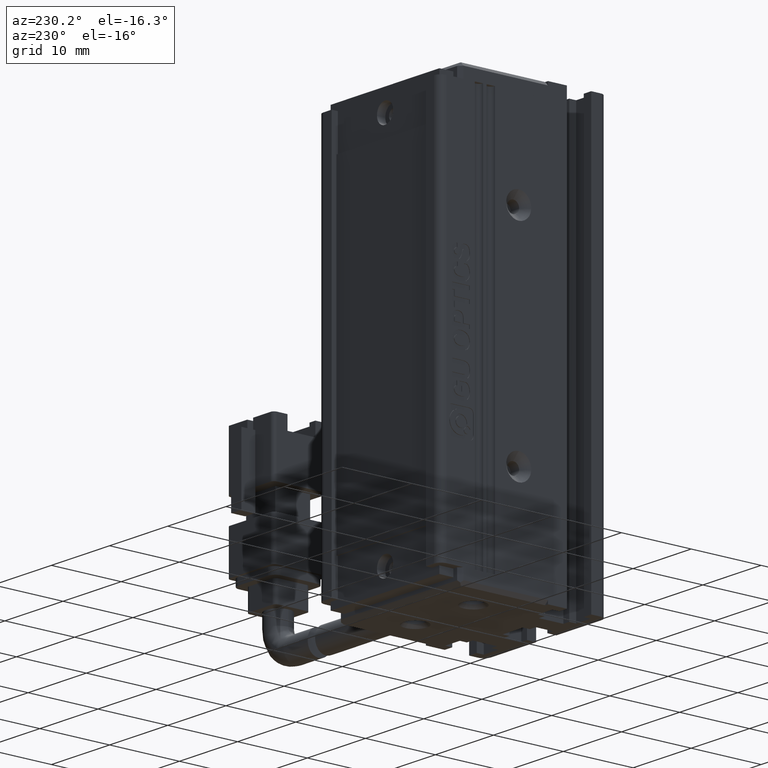
[diagram: clean part render]
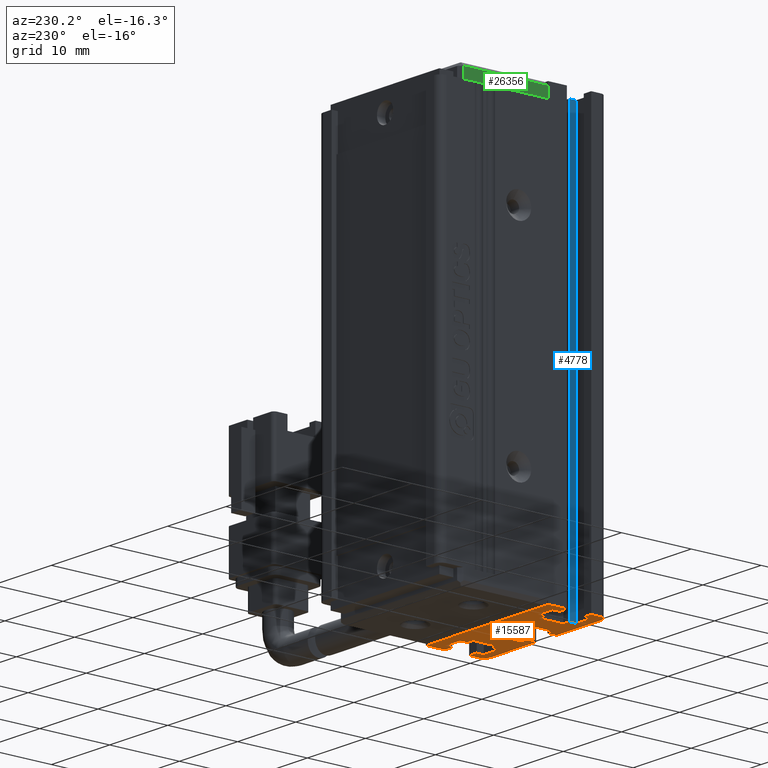
[diagram: same view with three faces highlighted in distinct colors, each labeled with its STEP entity id]
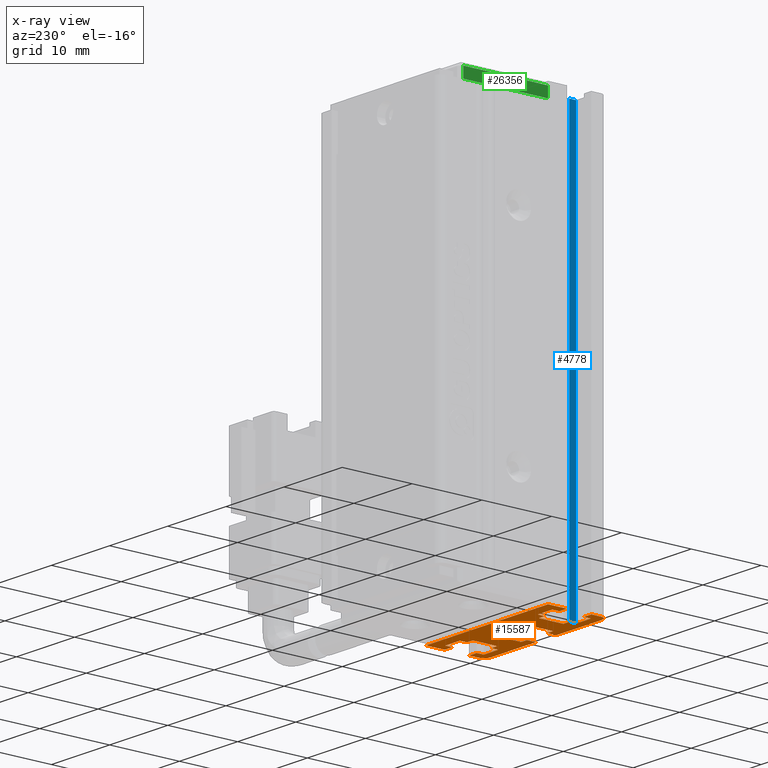
[diagram: x-ray of the same camera — body ghosted, the three highlighted faces saturated]
A machine part, auxiliary view with three faces highlighted in distinct colors.
The next image is the same camera in x-ray (body ghosted, the three faces saturated) — at least one of them is partly hidden behind the body in this view.
Their STEP definitions:

[orange] entity #15587 — the highlighted planar face has unit normal (-0, 0, 1).
#7 = VERTEX_POINT ( 'NONE', #13514 ) ;
#19 = DIRECTION ( 'NONE',  ( 1.000000000000000000, 0.0000000000000000000, 0.0000000000000000000 ) ) ;
#21 = CIRCLE ( 'NONE', #11964, 1.000000000000000900 ) ;
#32 = LINE ( 'NONE', #17951, #11987 ) ;
#67 = CARTESIAN_POINT ( 'NONE',  ( 21.22537974683542200, 12.88379746835444100, -145.0000000000000300 ) ) ;
#90 = ORIENTED_EDGE ( 'NONE', *, *, #24316, .F. ) ;
#91 = DIRECTION ( 'NONE',  ( 1.000000000000000000, 2.168404344971006600E-016, 0.0000000000000000000 ) ) ;
#93 = AXIS2_PLACEMENT_3D ( 'NONE', #24642, #11392, #9210 ) ;
#212 = EDGE_CURVE ( 'NONE', #8541, #2190, #1710, .T. ) ;
#227 = CARTESIAN_POINT ( 'NONE',  ( 21.22537974683542600, 13.88379746835443700, -145.0000000000000300 ) ) ;
#285 = LINE ( 'NONE', #4698, #18794 ) ;
#288 = VERTEX_POINT ( 'NONE', #4007 ) ;
#421 = CARTESIAN_POINT ( 'NONE',  ( 33.17537974683542500, 8.383797468354437400, -145.0000000000000300 ) ) ;
#545 = CARTESIAN_POINT ( 'NONE',  ( 23.72537974683543300, 9.383797468354437400, -145.0000000000000300 ) ) ;
#637 = VECTOR ( 'NONE', #12863, 1000.000000000000000 ) ;
#652 = EDGE_CURVE ( 'NONE', #2190, #25988, #3022, .T. ) ;
#654 = CARTESIAN_POINT ( 'NONE',  ( 27.67537974683542500, 8.383797468354437400, -145.0000000000000300 ) ) ;
#714 = ORIENTED_EDGE ( 'NONE', *, *, #5161, .F. ) ;
#741 = ORIENTED_EDGE ( 'NONE', *, *, #19962, .F. ) ;
#764 = CARTESIAN_POINT ( 'NONE',  ( 28.67537974683542900, 7.083797468354437600, -145.0000000000000300 ) ) ;
#1118 = CARTESIAN_POINT ( 'NONE',  ( 39.62537974683541400, 7.083797468354437600, -145.0000000000000300 ) ) ;
#1336 = LINE ( 'NONE', #19323, #18482 ) ;
#1453 = CARTESIAN_POINT ( 'NONE',  ( 27.67537974683542500, 10.88379746835443600, -145.0000000000000300 ) ) ;
#1494 = ORIENTED_EDGE ( 'NONE', *, *, #21286, .F. ) ;
#1588 = VECTOR ( 'NONE', #15485, 1000.000000000000000 ) ;
#1710 = LINE ( 'NONE', #13825, #12634 ) ;
#1920 = VECTOR ( 'NONE', #25831, 1000.000000000000000 ) ;
#1946 = VERTEX_POINT ( 'NONE', #7652 ) ;
#2024 = ORIENTED_EDGE ( 'NONE', *, *, #18951, .F. ) ;
#2099 = ORIENTED_EDGE ( 'NONE', *, *, #18654, .F. ) ;
#2190 = VERTEX_POINT ( 'NONE', #8730 ) ;
#2243 = VECTOR ( 'NONE', #26325, 1000.000000000000000 ) ;
#2250 = DIRECTION ( 'NONE',  ( -1.000000000000000000, 0.0000000000000000000, 0.0000000000000000000 ) ) ;
#2277 = CARTESIAN_POINT ( 'NONE',  ( 40.92537974683542500, 10.88379746835444100, -145.0000000000000300 ) ) ;
#2426 = ORIENTED_EDGE ( 'NONE', *, *, #28383, .F. ) ;
#2605 = CARTESIAN_POINT ( 'NONE',  ( 37.12537974683541400, 9.383797468354437400, -145.0000000000000300 ) ) ;
#2712 = CARTESIAN_POINT ( 'NONE',  ( 39.92537974683542500, 7.083797468354437600, -145.0000000000000300 ) ) ;
#2738 = EDGE_CURVE ( 'NONE', #14581, #25827, #285, .T. ) ;
#2847 = CARTESIAN_POINT ( 'NONE',  ( 24.72537974683543300, 12.88379746835443700, -145.0000000000000300 ) ) ;
#2996 = VECTOR ( 'NONE', #21630, 1000.000000000000000 ) ;
#3009 = DIRECTION ( 'NONE',  ( 0.0000000000000000000, 1.000000000000000000, 0.0000000000000000000 ) ) ;
#3022 = LINE ( 'NONE', #15186, #24360 ) ;
#3128 = EDGE_CURVE ( 'NONE', #8541, #16170, #11475, .T. ) ;
#3245 = DIRECTION ( 'NONE',  ( -3.469446951953625600E-015, 1.000000000000000000, 0.0000000000000000000 ) ) ;
#3273 = DIRECTION ( 'NONE',  ( 1.000000000000000000, 0.0000000000000000000, 0.0000000000000000000 ) ) ;
#3414 = ORIENTED_EDGE ( 'NONE', *, *, #25224, .F. ) ;
#3494 = LINE ( 'NONE', #17140, #11725 ) ;
#3541 = VERTEX_POINT ( 'NONE', #67 ) ;
#3582 = LINE ( 'NONE', #11774, #12205 ) ;
#3646 = LINE ( 'NONE', #26115, #637 ) ;
#3674 = LINE ( 'NONE', #17523, #14666 ) ;
#3731 = VERTEX_POINT ( 'NONE', #7573 ) ;
#3743 = ORIENTED_EDGE ( 'NONE', *, *, #9774, .F. ) ;
#3803 = EDGE_CURVE ( 'NONE', #6259, #21144, #25906, .T. ) ;
#3924 = DIRECTION ( 'NONE',  ( -0.0000000000000000000, -1.000000000000000000, 0.0000000000000000000 ) ) ;
#3943 = VECTOR ( 'NONE', #27352, 1000.000000000000000 ) ;
#3983 = CARTESIAN_POINT ( 'NONE',  ( 40.92537974683542500, 12.88379746835443600, -145.0000000000000300 ) ) ;
#4007 = CARTESIAN_POINT ( 'NONE',  ( 32.17537974683542500, 7.083797468354436700, -145.0000000000000300 ) ) ;
#4032 = CARTESIAN_POINT ( 'NONE',  ( 39.92537974683542500, 8.083797468354438500, -145.0000000000000300 ) ) ;
#4077 = VECTOR ( 'NONE', #26450, 1000.000000000000000 ) ;
#4268 = CARTESIAN_POINT ( 'NONE',  ( 32.17537974683542500, 11.88379746835443700, -145.0000000000000300 ) ) ;
#4279 = VERTEX_POINT ( 'NONE', #16563 ) ;
#4329 = DIRECTION ( 'NONE',  ( -1.000000000000000000, -0.0000000000000000000, -0.0000000000000000000 ) ) ;
#4346 = ORIENTED_EDGE ( 'NONE', *, *, #212, .T. ) ;
#4444 = CARTESIAN_POINT ( 'NONE',  ( 40.92537974683542500, 8.083797468354440200, -145.0000000000000300 ) ) ;
#4556 = EDGE_CURVE ( 'NONE', #11454, #3731, #16503, .T. ) ;
#4698 = CARTESIAN_POINT ( 'NONE',  ( 28.67537974683542900, 7.083797468354454500, -145.0000000000000300 ) ) ;
#4736 = VERTEX_POINT ( 'NONE', #227 ) ;
#4805 = LINE ( 'NONE', #16839, #5119 ) ;
#4896 = DIRECTION ( 'NONE',  ( 0.0000000000000000000, 1.000000000000000000, -0.0000000000000000000 ) ) ;
#5117 = CARTESIAN_POINT ( 'NONE',  ( 39.62537974683541400, 12.88379746835443400, -145.0000000000000300 ) ) ;
#5119 = VECTOR ( 'NONE', #19526, 1000.000000000000000 ) ;
#5127 = ORIENTED_EDGE ( 'NONE', *, *, #20761, .T. ) ;
#5161 = EDGE_CURVE ( 'NONE', #1946, #6050, #4805, .T. ) ;
#5183 = DIRECTION ( 'NONE',  ( -1.000000000000000000, -0.0000000000000000000, 0.0000000000000000000 ) ) ;
#5598 = EDGE_CURVE ( 'NONE', #6259, #4279, #13339, .T. ) ;
#5651 = CARTESIAN_POINT ( 'NONE',  ( 40.92537974683542500, 11.88379746835443700, -145.0000000000000300 ) ) ;
#5717 = CARTESIAN_POINT ( 'NONE',  ( 28.67537974683542900, 8.383797468354437400, -145.0000000000000300 ) ) ;
#5760 = CARTESIAN_POINT ( 'NONE',  ( 40.92537974683542500, 7.083797468354435800, -145.0000000000000300 ) ) ;
#5812 = VERTEX_POINT ( 'NONE', #22035 ) ;
#6050 = VERTEX_POINT ( 'NONE', #21892 ) ;
#6259 = VERTEX_POINT ( 'NONE', #2847 ) ;
#6543 = EDGE_CURVE ( 'NONE', #4736, #3541, #18060, .T. ) ;
#6627 = AXIS2_PLACEMENT_3D ( 'NONE', #19327, #12947, #28336 ) ;
#6657 = VECTOR ( 'NONE', #27019, 1000.000000000000000 ) ;
#6665 = LINE ( 'NONE', #11594, #7355 ) ;
#6812 = ORIENTED_EDGE ( 'NONE', *, *, #25306, .F. ) ;
#6845 = ORIENTED_EDGE ( 'NONE', *, *, #9352, .T. ) ;
#6999 = PLANE ( 'NONE',  #93 ) ;
#7119 = ORIENTED_EDGE ( 'NONE', *, *, #16780, .T. ) ;
#7203 = LINE ( 'NONE', #3983, #18584 ) ;
#7267 = LINE ( 'NONE', #2277, #13090 ) ;
#7355 = VECTOR ( 'NONE', #4896, 1000.000000000000000 ) ;
#7500 = VERTEX_POINT ( 'NONE', #25148 ) ;
#7526 = VERTEX_POINT ( 'NONE', #16530 ) ;
#7573 = CARTESIAN_POINT ( 'NONE',  ( 19.92537974683542500, 8.083797468354434900, -145.0000000000000300 ) ) ;
#7652 = CARTESIAN_POINT ( 'NONE',  ( 37.12537974683541400, 12.88379746835443600, -145.0000000000000300 ) ) ;
#7684 = CARTESIAN_POINT ( 'NONE',  ( 33.17537974683542500, 7.083797468354437600, -145.0000000000000300 ) ) ;
#7827 = VECTOR ( 'NONE', #12186, 1000.000000000000000 ) ;
#8209 = EDGE_CURVE ( 'NONE', #11261, #25988, #7203, .T. ) ;
#8258 = CARTESIAN_POINT ( 'NONE',  ( 19.92537974683542500, 7.083797468354437600, -145.0000000000000300 ) ) ;
#8263 = EDGE_CURVE ( 'NONE', #288, #13849, #14764, .T. ) ;
#8318 = VERTEX_POINT ( 'NONE', #17558 ) ;
#8541 = VERTEX_POINT ( 'NONE', #12114 ) ;
#8574 = ORIENTED_EDGE ( 'NONE', *, *, #27621, .T. ) ;
#8622 = EDGE_LOOP ( 'NONE', ( #22110, #15040, #14252, #741, #714, #11386, #1494, #15398, #90, #25703, #14605, #2024, #8574, #14359, #25816, #16499, #3743, #17077, #26350, #6812, #3414, #9976, #22034, #27428, #19598, #23368, #2426, #10017, #27605, #6845, #16836, #10631, #7119, #5127, #14007, #10127, #8924, #2099, #15657, #25023, #11274, #4346 ) ) ;
#8680 = VERTEX_POINT ( 'NONE', #14809 ) ;
#8730 = CARTESIAN_POINT ( 'NONE',  ( 40.92537974683542500, 15.58379746835443800, -145.0000000000000300 ) ) ;
#8769 = DIRECTION ( 'NONE',  ( 5.687617954022316600E-016, -1.000000000000000000, 0.0000000000000000000 ) ) ;
#8845 = CARTESIAN_POINT ( 'NONE',  ( 21.22537974683542200, 9.383797468354437400, -145.0000000000000300 ) ) ;
#8894 = DIRECTION ( 'NONE',  ( 1.000000000000000000, 0.0000000000000000000, 0.0000000000000000000 ) ) ;
#8924 = ORIENTED_EDGE ( 'NONE', *, *, #9737, .T. ) ;
#8947 = VECTOR ( 'NONE', #3924, 1000.000000000000000 ) ;
#9016 = EDGE_CURVE ( 'NONE', #8680, #24444, #9164, .T. ) ;
#9053 = EDGE_CURVE ( 'NONE', #11261, #26526, #26072, .T. ) ;
#9059 = CARTESIAN_POINT ( 'NONE',  ( 39.62537974683541400, 13.88379746835443600, -145.0000000000000300 ) ) ;
#9164 = LINE ( 'NONE', #7684, #27818 ) ;
#9210 = DIRECTION ( 'NONE',  ( 1.000000000000000000, 0.0000000000000000000, 0.0000000000000000000 ) ) ;
#9352 = EDGE_CURVE ( 'NONE', #11454, #15332, #25353, .T. ) ;
#9415 = VECTOR ( 'NONE', #17068, 1000.000000000000000 ) ;
#9464 = VERTEX_POINT ( 'NONE', #24245 ) ;
#9483 = LINE ( 'NONE', #16898, #20496 ) ;
#9590 = CARTESIAN_POINT ( 'NONE',  ( 40.92537974683542500, 8.383797468354437400, -145.0000000000000300 ) ) ;
#9671 = DIRECTION ( 'NONE',  ( -1.000000000000000000, -4.336808689941969400E-016, 0.0000000000000000000 ) ) ;
#9737 = EDGE_CURVE ( 'NONE', #4279, #28315, #3582, .T. ) ;
#9774 = EDGE_CURVE ( 'NONE', #24444, #7, #20849, .T. ) ;
#9784 = CARTESIAN_POINT ( 'NONE',  ( 23.72537974683542900, 13.88379746835443700, -145.0000000000000300 ) ) ;
#9890 = VECTOR ( 'NONE', #19031, 1000.000000000000000 ) ;
#9976 = ORIENTED_EDGE ( 'NONE', *, *, #16620, .T. ) ;
#10017 = ORIENTED_EDGE ( 'NONE', *, *, #15191, .F. ) ;
#10025 = DIRECTION ( 'NONE',  ( -0.0000000000000000000, -1.000000000000000000, 0.0000000000000000000 ) ) ;
#10041 = DIRECTION ( 'NONE',  ( 1.000000000000000000, 1.221636250687892000E-016, 0.0000000000000000000 ) ) ;
#10056 = CARTESIAN_POINT ( 'NONE',  ( 40.92537974683543900, 12.88379746835439700, -145.0000000000000300 ) ) ;
#10127 = ORIENTED_EDGE ( 'NONE', *, *, #5598, .T. ) ;
#10296 = DIRECTION ( 'NONE',  ( 1.000000000000000000, 0.0000000000000000000, 0.0000000000000000000 ) ) ;
#10450 = CARTESIAN_POINT ( 'NONE',  ( 32.17537974683542500, 7.083797468354437600, -145.0000000000000300 ) ) ;
#10451 = CARTESIAN_POINT ( 'NONE',  ( 40.92537974683543200, 9.383797468354405400, -145.0000000000000300 ) ) ;
#10480 = CARTESIAN_POINT ( 'NONE',  ( 19.92537974683542500, 9.383797468354439200, -145.0000000000000300 ) ) ;
#10527 = LINE ( 'NONE', #27538, #21579 ) ;
#10599 = LINE ( 'NONE', #19683, #4077 ) ;
#10631 = ORIENTED_EDGE ( 'NONE', *, *, #21509, .F. ) ;
#10665 = DIRECTION ( 'NONE',  ( 0.0000000000000000000, 0.0000000000000000000, 1.000000000000000000 ) ) ;
#11093 = EDGE_CURVE ( 'NONE', #15445, #1946, #32, .T. ) ;
#11163 = CARTESIAN_POINT ( 'NONE',  ( 40.92537974683542500, 12.88379746835443700, -145.0000000000000300 ) ) ;
#11261 = VERTEX_POINT ( 'NONE', #5117 ) ;
#11274 = ORIENTED_EDGE ( 'NONE', *, *, #3128, .F. ) ;
#11386 = ORIENTED_EDGE ( 'NONE', *, *, #11093, .F. ) ;
#11392 = DIRECTION ( 'NONE',  ( -0.0000000000000000000, 0.0000000000000000000, 1.000000000000000000 ) ) ;
#11454 = VERTEX_POINT ( 'NONE', #10480 ) ;
#11475 = LINE ( 'NONE', #15382, #1588 ) ;
#11546 = EDGE_CURVE ( 'NONE', #25113, #25827, #3674, .T. ) ;
#11594 = CARTESIAN_POINT ( 'NONE',  ( 36.12537974683540700, 7.083797468354437600, -145.0000000000000300 ) ) ;
#11707 = CARTESIAN_POINT ( 'NONE',  ( 40.92537974683542500, 10.88379746835443600, -145.0000000000000300 ) ) ;
#11725 = VECTOR ( 'NONE', #15183, 1000.000000000000000 ) ;
#11774 = CARTESIAN_POINT ( 'NONE',  ( 23.72537974683545400, 7.083797468354378100, -145.0000000000000300 ) ) ;
#11793 = DIRECTION ( 'NONE',  ( -1.000000000000000000, -0.0000000000000000000, -0.0000000000000000000 ) ) ;
#11928 = EDGE_CURVE ( 'NONE', #14020, #22075, #18108, .T. ) ;
#11943 = CARTESIAN_POINT ( 'NONE',  ( 27.67537974683542500, 7.083797468354437600, -145.0000000000000300 ) ) ;
#11964 = AXIS2_PLACEMENT_3D ( 'NONE', #4032, #10665, #2250 ) ;
#11987 = VECTOR ( 'NONE', #8894, 1000.000000000000000 ) ;
#12114 = CARTESIAN_POINT ( 'NONE',  ( 19.92537974683542500, 15.58379746835443700, -145.0000000000000300 ) ) ;
#12186 = DIRECTION ( 'NONE',  ( -1.000000000000000000, 2.602085213965208300E-015, 0.0000000000000000000 ) ) ;
#12205 = VECTOR ( 'NONE', #3245, 1000.000000000000000 ) ;
#12416 = VECTOR ( 'NONE', #10025, 1000.000000000000000 ) ;
#12634 = VECTOR ( 'NONE', #10041, 1000.000000000000000 ) ;
#12863 = DIRECTION ( 'NONE',  ( -2.668805347656626500E-015, 1.000000000000000000, 0.0000000000000000000 ) ) ;
#12947 = DIRECTION ( 'NONE',  ( 0.0000000000000000000, 0.0000000000000000000, 1.000000000000000000 ) ) ;
#13042 = VERTEX_POINT ( 'NONE', #4444 ) ;
#13090 = VECTOR ( 'NONE', #22082, 1000.000000000000000 ) ;
#13339 = LINE ( 'NONE', #10056, #7827 ) ;
#13412 = DIRECTION ( 'NONE',  ( 1.000000000000000000, 0.0000000000000000000, 0.0000000000000000000 ) ) ;
#13514 = CARTESIAN_POINT ( 'NONE',  ( 32.17537974683542500, 8.383797468354437400, -145.0000000000000300 ) ) ;
#13665 = CIRCLE ( 'NONE', #6627, 1.000000000000000900 ) ;
#13825 = CARTESIAN_POINT ( 'NONE',  ( 40.92537974683542500, 15.58379746835443800, -145.0000000000000300 ) ) ;
#13849 = VERTEX_POINT ( 'NONE', #2712 ) ;
#14007 = ORIENTED_EDGE ( 'NONE', *, *, #3803, .F. ) ;
#14020 = VERTEX_POINT ( 'NONE', #27546 ) ;
#14043 = LINE ( 'NONE', #5760, #9890 ) ;
#14141 = CARTESIAN_POINT ( 'NONE',  ( 23.72537974683542600, 7.083797468354498000, -145.0000000000000300 ) ) ;
#14252 = ORIENTED_EDGE ( 'NONE', *, *, #9053, .T. ) ;
#14359 = ORIENTED_EDGE ( 'NONE', *, *, #22851, .F. ) ;
#14407 = CARTESIAN_POINT ( 'NONE',  ( 21.22537974683542900, 7.083797468354369200, -145.0000000000000300 ) ) ;
#14581 = VERTEX_POINT ( 'NONE', #27889 ) ;
#14605 = ORIENTED_EDGE ( 'NONE', *, *, #24864, .F. ) ;
#14666 = VECTOR ( 'NONE', #91, 1000.000000000000000 ) ;
#14764 = LINE ( 'NONE', #28293, #23763 ) ;
#14769 = VERTEX_POINT ( 'NONE', #26324 ) ;
#14791 = CARTESIAN_POINT ( 'NONE',  ( 28.67537974683542900, 11.88379746835443700, -145.0000000000000300 ) ) ;
#14809 = CARTESIAN_POINT ( 'NONE',  ( 33.17537974683542500, 10.88379746835443700, -145.0000000000000300 ) ) ;
#15011 = CARTESIAN_POINT ( 'NONE',  ( 37.12537974683542100, 7.083797468354425100, -145.0000000000000300 ) ) ;
#15040 = ORIENTED_EDGE ( 'NONE', *, *, #8209, .F. ) ;
#15183 = DIRECTION ( 'NONE',  ( -0.0000000000000000000, -1.000000000000000000, 0.0000000000000000000 ) ) ;
#15186 = CARTESIAN_POINT ( 'NONE',  ( 40.92537974683543200, 7.083797468354437600, -145.0000000000000300 ) ) ;
#15191 = EDGE_CURVE ( 'NONE', #3731, #26043, #13665, .T. ) ;
#15217 = VECTOR ( 'NONE', #11793, 1000.000000000000000 ) ;
#15332 = VERTEX_POINT ( 'NONE', #8845 ) ;
#15382 = CARTESIAN_POINT ( 'NONE',  ( 19.92537974683542500, 7.083797468354437600, -145.0000000000000300 ) ) ;
#15398 = ORIENTED_EDGE ( 'NONE', *, *, #15689, .F. ) ;
#15445 = VERTEX_POINT ( 'NONE', #26788 ) ;
#15485 = DIRECTION ( 'NONE',  ( -0.0000000000000000000, -1.000000000000000000, 0.0000000000000000000 ) ) ;
#15566 = CARTESIAN_POINT ( 'NONE',  ( 24.72537974683543300, 9.383797468354439200, -145.0000000000000300 ) ) ;
#15587 = ADVANCED_FACE ( 'NONE', ( #15686 ), #6999, .F. ) ;
#15657 = ORIENTED_EDGE ( 'NONE', *, *, #6543, .T. ) ;
#15686 = FACE_OUTER_BOUND ( 'NONE', #8622, .T. ) ;
#15689 = EDGE_CURVE ( 'NONE', #25608, #7526, #9483, .T. ) ;
#15809 = VECTOR ( 'NONE', #10296, 1000.000000000000000 ) ;
#16057 = DIRECTION ( 'NONE',  ( -0.0000000000000000000, -1.000000000000000000, 0.0000000000000000000 ) ) ;
#16170 = VERTEX_POINT ( 'NONE', #18336 ) ;
#16269 = DIRECTION ( 'NONE',  ( 3.469446951953615000E-015, 1.000000000000000000, 0.0000000000000000000 ) ) ;
#16384 = VECTOR ( 'NONE', #5183, 1000.000000000000000 ) ;
#16499 = ORIENTED_EDGE ( 'NONE', *, *, #23642, .T. ) ;
#16503 = LINE ( 'NONE', #8258, #8947 ) ;
#16519 = EDGE_CURVE ( 'NONE', #16170, #3541, #21141, .T. ) ;
#16530 = CARTESIAN_POINT ( 'NONE',  ( 36.12537974683540700, 9.383797468354437400, -145.0000000000000300 ) ) ;
#16563 = CARTESIAN_POINT ( 'NONE',  ( 23.72537974683543300, 12.88379746835444100, -145.0000000000000300 ) ) ;
#16620 = EDGE_CURVE ( 'NONE', #18605, #14020, #18370, .T. ) ;
#16632 = DIRECTION ( 'NONE',  ( 3.469446951953615000E-015, -1.000000000000000000, 0.0000000000000000000 ) ) ;
#16685 = VECTOR ( 'NONE', #26186, 1000.000000000000000 ) ;
#16780 = EDGE_CURVE ( 'NONE', #28027, #17229, #19755, .T. ) ;
#16836 = ORIENTED_EDGE ( 'NONE', *, *, #28406, .T. ) ;
#16839 = CARTESIAN_POINT ( 'NONE',  ( 37.12537974683539200, 7.083797468354450900, -145.0000000000000300 ) ) ;
#16887 = CARTESIAN_POINT ( 'NONE',  ( 24.72537974683543300, 7.083797468354437600, -145.0000000000000300 ) ) ;
#16898 = CARTESIAN_POINT ( 'NONE',  ( 40.92537974683542500, 9.383797468354439200, -145.0000000000000300 ) ) ;
#17047 = EDGE_CURVE ( 'NONE', #9464, #14769, #24223, .T. ) ;
#17068 = DIRECTION ( 'NONE',  ( -3.469446951953617300E-015, 1.000000000000000000, 0.0000000000000000000 ) ) ;
#17077 = ORIENTED_EDGE ( 'NONE', *, *, #9016, .F. ) ;
#17140 = CARTESIAN_POINT ( 'NONE',  ( 39.62537974683541400, 7.083797468354437600, -145.0000000000000300 ) ) ;
#17229 = VERTEX_POINT ( 'NONE', #545 ) ;
#17254 = DIRECTION ( 'NONE',  ( 1.000000000000000000, 0.0000000000000000000, 0.0000000000000000000 ) ) ;
#17401 = DIRECTION ( 'NONE',  ( -1.000000000000000000, -6.672013369141516900E-016, 0.0000000000000000000 ) ) ;
#17420 = CARTESIAN_POINT ( 'NONE',  ( 21.22537974683540100, 7.083797468354506000, -145.0000000000000300 ) ) ;
#17523 = CARTESIAN_POINT ( 'NONE',  ( 40.92537974683542500, 8.383797468354441000, -145.0000000000000300 ) ) ;
#17558 = CARTESIAN_POINT ( 'NONE',  ( 32.17537974683542500, 10.88379746835443700, -145.0000000000000300 ) ) ;
#17655 = CARTESIAN_POINT ( 'NONE',  ( 20.92537974683542500, 7.083797468354435800, -145.0000000000000300 ) ) ;
#17951 = CARTESIAN_POINT ( 'NONE',  ( 40.92537974683542500, 12.88379746835443600, -145.0000000000000300 ) ) ;
#17975 = EDGE_CURVE ( 'NONE', #8318, #8680, #7267, .T. ) ;
#18060 = LINE ( 'NONE', #17420, #1920 ) ;
#18108 = LINE ( 'NONE', #11707, #16384 ) ;
#18336 = CARTESIAN_POINT ( 'NONE',  ( 19.92537974683542500, 12.88379746835443700, -145.0000000000000300 ) ) ;
#18370 = LINE ( 'NONE', #764, #6657 ) ;
#18482 = VECTOR ( 'NONE', #17401, 1000.000000000000000 ) ;
#18584 = VECTOR ( 'NONE', #17254, 1000.000000000000000 ) ;
#18605 = VERTEX_POINT ( 'NONE', #14791 ) ;
#18654 = EDGE_CURVE ( 'NONE', #4736, #28315, #24740, .T. ) ;
#18794 = VECTOR ( 'NONE', #20087, 1000.000000000000000 ) ;
#18951 = EDGE_CURVE ( 'NONE', #24220, #7500, #1336, .T. ) ;
#19031 = DIRECTION ( 'NONE',  ( 1.000000000000000000, 0.0000000000000000000, 0.0000000000000000000 ) ) ;
#19323 = CARTESIAN_POINT ( 'NONE',  ( 40.92537974683542500, 9.383797468354441000, -145.0000000000000300 ) ) ;
#19327 = CARTESIAN_POINT ( 'NONE',  ( 20.92537974683542500, 8.083797468354434900, -145.0000000000000300 ) ) ;
#19526 = DIRECTION ( 'NONE',  ( 3.469446951953617300E-015, 1.000000000000000000, 0.0000000000000000000 ) ) ;
#19598 = ORIENTED_EDGE ( 'NONE', *, *, #11546, .T. ) ;
#19683 = CARTESIAN_POINT ( 'NONE',  ( 40.92537974683542500, 7.083797468354437600, -145.0000000000000300 ) ) ;
#19755 = LINE ( 'NONE', #14141, #22546 ) ;
#19962 = EDGE_CURVE ( 'NONE', #6050, #26526, #20657, .T. ) ;
#20061 = CARTESIAN_POINT ( 'NONE',  ( 40.92537974683542500, 13.88379746835443700, -145.0000000000000300 ) ) ;
#20087 = DIRECTION ( 'NONE',  ( 1.334402673828313200E-015, 1.000000000000000000, 0.0000000000000000000 ) ) ;
#20182 = VECTOR ( 'NONE', #3009, 1000.000000000000000 ) ;
#20496 = VECTOR ( 'NONE', #9671, 1000.000000000000000 ) ;
#20653 = CARTESIAN_POINT ( 'NONE',  ( 40.92537974683542500, 8.383797468354437400, -145.0000000000000300 ) ) ;
#20657 = LINE ( 'NONE', #25840, #15809 ) ;
#20761 = EDGE_CURVE ( 'NONE', #17229, #21144, #10527, .T. ) ;
#20764 = LINE ( 'NONE', #9590, #15217 ) ;
#20795 = VECTOR ( 'NONE', #25197, 1000.000000000000000 ) ;
#20849 = LINE ( 'NONE', #20653, #3943 ) ;
#20941 = DIRECTION ( 'NONE',  ( 1.000000000000000000, 2.168404344971006900E-015, 0.0000000000000000000 ) ) ;
#21141 = LINE ( 'NONE', #11163, #2243 ) ;
#21144 = VERTEX_POINT ( 'NONE', #15566 ) ;
#21286 = EDGE_CURVE ( 'NONE', #7526, #15445, #6665, .T. ) ;
#21298 = CARTESIAN_POINT ( 'NONE',  ( 40.92537974683543200, 9.383797468354441000, -145.0000000000000300 ) ) ;
#21509 = EDGE_CURVE ( 'NONE', #28027, #5812, #20764, .T. ) ;
#21579 = VECTOR ( 'NONE', #20941, 1000.000000000000000 ) ;
#21630 = DIRECTION ( 'NONE',  ( -0.0000000000000000000, -1.000000000000000000, 0.0000000000000000000 ) ) ;
#21755 = CARTESIAN_POINT ( 'NONE',  ( 40.92537974683542500, 8.383797468354441000, -145.0000000000000300 ) ) ;
#21814 = VECTOR ( 'NONE', #4329, 1000.000000000000000 ) ;
#21892 = CARTESIAN_POINT ( 'NONE',  ( 37.12537974683542100, 13.88379746835443600, -145.0000000000000300 ) ) ;
#22034 = ORIENTED_EDGE ( 'NONE', *, *, #11928, .T. ) ;
#22035 = CARTESIAN_POINT ( 'NONE',  ( 21.22537974683542600, 8.383797468354437400, -145.0000000000000300 ) ) ;
#22075 = VERTEX_POINT ( 'NONE', #1453 ) ;
#22082 = DIRECTION ( 'NONE',  ( 1.000000000000000000, 4.336808689942021700E-016, 0.0000000000000000000 ) ) ;
#22091 = CARTESIAN_POINT ( 'NONE',  ( 40.92537974683542500, 12.88379746835443400, -145.0000000000000300 ) ) ;
#22110 = ORIENTED_EDGE ( 'NONE', *, *, #652, .T. ) ;
#22546 = VECTOR ( 'NONE', #16269, 1000.000000000000000 ) ;
#22851 = EDGE_CURVE ( 'NONE', #13849, #13042, #21, .T. ) ;
#23368 = ORIENTED_EDGE ( 'NONE', *, *, #2738, .F. ) ;
#23642 = EDGE_CURVE ( 'NONE', #288, #7, #3646, .T. ) ;
#23763 = VECTOR ( 'NONE', #19, 1000.000000000000000 ) ;
#24124 = EDGE_CURVE ( 'NONE', #25113, #22075, #24270, .T. ) ;
#24220 = VERTEX_POINT ( 'NONE', #21298 ) ;
#24223 = LINE ( 'NONE', #21755, #21814 ) ;
#24245 = CARTESIAN_POINT ( 'NONE',  ( 39.62537974683541400, 8.383797468354441000, -145.0000000000000300 ) ) ;
#24270 = LINE ( 'NONE', #11943, #20795 ) ;
#24316 = EDGE_CURVE ( 'NONE', #14769, #25608, #25641, .T. ) ;
#24336 = LINE ( 'NONE', #5651, #27809 ) ;
#24360 = VECTOR ( 'NONE', #8769, 1000.000000000000000 ) ;
#24391 = VERTEX_POINT ( 'NONE', #4268 ) ;
#24444 = VERTEX_POINT ( 'NONE', #421 ) ;
#24642 = CARTESIAN_POINT ( 'NONE',  ( 40.92537974683542500, 7.083797468354437600, -145.0000000000000300 ) ) ;
#24740 = LINE ( 'NONE', #20061, #28211 ) ;
#24768 = VECTOR ( 'NONE', #16632, 1000.000000000000000 ) ;
#24864 = EDGE_CURVE ( 'NONE', #7500, #9464, #3494, .T. ) ;
#25023 = ORIENTED_EDGE ( 'NONE', *, *, #16519, .F. ) ;
#25113 = VERTEX_POINT ( 'NONE', #654 ) ;
#25148 = CARTESIAN_POINT ( 'NONE',  ( 39.62537974683541400, 9.383797468354439200, -145.0000000000000300 ) ) ;
#25197 = DIRECTION ( 'NONE',  ( 0.0000000000000000000, 1.000000000000000000, -0.0000000000000000000 ) ) ;
#25224 = EDGE_CURVE ( 'NONE', #18605, #24391, #24336, .T. ) ;
#25306 = EDGE_CURVE ( 'NONE', #24391, #8318, #27134, .T. ) ;
#25353 = LINE ( 'NONE', #10451, #16685 ) ;
#25608 = VERTEX_POINT ( 'NONE', #2605 ) ;
#25641 = LINE ( 'NONE', #15011, #9415 ) ;
#25703 = ORIENTED_EDGE ( 'NONE', *, *, #17047, .F. ) ;
#25816 = ORIENTED_EDGE ( 'NONE', *, *, #8263, .F. ) ;
#25827 = VERTEX_POINT ( 'NONE', #5717 ) ;
#25831 = DIRECTION ( 'NONE',  ( -3.469446951953625600E-015, -1.000000000000000000, 0.0000000000000000000 ) ) ;
#25840 = CARTESIAN_POINT ( 'NONE',  ( 40.92537974683542500, 13.88379746835443600, -145.0000000000000300 ) ) ;
#25906 = LINE ( 'NONE', #16887, #12416 ) ;
#25988 = VERTEX_POINT ( 'NONE', #22091 ) ;
#26043 = VERTEX_POINT ( 'NONE', #17655 ) ;
#26072 = LINE ( 'NONE', #1118, #20182 ) ;
#26115 = CARTESIAN_POINT ( 'NONE',  ( 32.17537974683542500, 7.083797468354414500, -145.0000000000000300 ) ) ;
#26186 = DIRECTION ( 'NONE',  ( 1.000000000000000000, -1.668003342285392400E-015, 0.0000000000000000000 ) ) ;
#26324 = CARTESIAN_POINT ( 'NONE',  ( 37.12537974683542100, 8.383797468354439200, -145.0000000000000300 ) ) ;
#26325 = DIRECTION ( 'NONE',  ( 1.000000000000000000, 0.0000000000000000000, 0.0000000000000000000 ) ) ;
#26350 = ORIENTED_EDGE ( 'NONE', *, *, #17975, .F. ) ;
#26422 = CARTESIAN_POINT ( 'NONE',  ( 23.72537974683543300, 8.383797468354437400, -145.0000000000000300 ) ) ;
#26450 = DIRECTION ( 'NONE',  ( -1.508455196501570000E-015, -1.000000000000000000, 0.0000000000000000000 ) ) ;
#26483 = LINE ( 'NONE', #14407, #24768 ) ;
#26526 = VERTEX_POINT ( 'NONE', #9059 ) ;
#26788 = CARTESIAN_POINT ( 'NONE',  ( 36.12537974683540700, 12.88379746835443600, -145.0000000000000300 ) ) ;
#27019 = DIRECTION ( 'NONE',  ( -0.0000000000000000000, -1.000000000000000000, 0.0000000000000000000 ) ) ;
#27134 = LINE ( 'NONE', #10450, #2996 ) ;
#27352 = DIRECTION ( 'NONE',  ( -1.000000000000000000, -0.0000000000000000000, 0.0000000000000000000 ) ) ;
#27428 = ORIENTED_EDGE ( 'NONE', *, *, #24124, .F. ) ;
#27538 = CARTESIAN_POINT ( 'NONE',  ( 40.92537974683541800, 9.383797468354474700, -145.0000000000000300 ) ) ;
#27546 = CARTESIAN_POINT ( 'NONE',  ( 28.67537974683542900, 10.88379746835443600, -145.0000000000000300 ) ) ;
#27605 = ORIENTED_EDGE ( 'NONE', *, *, #4556, .F. ) ;
#27621 = EDGE_CURVE ( 'NONE', #24220, #13042, #10599, .T. ) ;
#27809 = VECTOR ( 'NONE', #3273, 1000.000000000000000 ) ;
#27818 = VECTOR ( 'NONE', #16057, 1000.000000000000000 ) ;
#27889 = CARTESIAN_POINT ( 'NONE',  ( 28.67537974683542900, 7.083797468354436700, -145.0000000000000300 ) ) ;
#28027 = VERTEX_POINT ( 'NONE', #26422 ) ;
#28211 = VECTOR ( 'NONE', #13412, 1000.000000000000000 ) ;
#28293 = CARTESIAN_POINT ( 'NONE',  ( 40.92537974683542500, 7.083797468354436700, -145.0000000000000300 ) ) ;
#28315 = VERTEX_POINT ( 'NONE', #9784 ) ;
#28336 = DIRECTION ( 'NONE',  ( -1.000000000000000000, 0.0000000000000000000, 0.0000000000000000000 ) ) ;
#28383 = EDGE_CURVE ( 'NONE', #26043, #14581, #14043, .T. ) ;
#28406 = EDGE_CURVE ( 'NONE', #15332, #5812, #26483, .T. ) ;

[blue] entity #4778 — the highlighted planar face has unit normal (1, -0, 0).
#545 = CARTESIAN_POINT ( 'NONE',  ( 23.72537974683543300, 9.383797468354437400, -145.0000000000000300 ) ) ;
#683 = DIRECTION ( 'NONE',  ( 1.000000000000000000, -3.469446951953615000E-015, 0.0000000000000000000 ) ) ;
#1713 = CARTESIAN_POINT ( 'NONE',  ( 23.72537974683543300, 9.383797468354437400, -85.00000000000000000 ) ) ;
#1787 = VERTEX_POINT ( 'NONE', #27348 ) ;
#2026 = ORIENTED_EDGE ( 'NONE', *, *, #17904, .F. ) ;
#2155 = CARTESIAN_POINT ( 'NONE',  ( 23.72537974683542600, 7.083797468354498000, -85.00000000000000000 ) ) ;
#3621 = CARTESIAN_POINT ( 'NONE',  ( 23.72537974683543300, 8.383797468354437400, -85.00000000000000000 ) ) ;
#4778 = ADVANCED_FACE ( 'NONE', ( #12333 ), #19470, .F. ) ;
#4846 = DIRECTION ( 'NONE',  ( 3.469446951953615000E-015, 1.000000000000000000, 0.0000000000000000000 ) ) ;
#5905 = LINE ( 'NONE', #1713, #16205 ) ;
#6447 = DIRECTION ( 'NONE',  ( -3.469446951953615000E-015, -1.000000000000000000, -0.0000000000000000000 ) ) ;
#9751 = LINE ( 'NONE', #2155, #18719 ) ;
#11260 = CARTESIAN_POINT ( 'NONE',  ( 23.72537974683542600, 7.083797468354498000, -85.00000000000000000 ) ) ;
#11529 = ORIENTED_EDGE ( 'NONE', *, *, #12554, .T. ) ;
#12333 = FACE_OUTER_BOUND ( 'NONE', #27070, .T. ) ;
#12418 = DIRECTION ( 'NONE',  ( -0.0000000000000000000, 0.0000000000000000000, 1.000000000000000000 ) ) ;
#12554 = EDGE_CURVE ( 'NONE', #28027, #23161, #18389, .T. ) ;
#12991 = ORIENTED_EDGE ( 'NONE', *, *, #16780, .F. ) ;
#14141 = CARTESIAN_POINT ( 'NONE',  ( 23.72537974683542600, 7.083797468354498000, -145.0000000000000300 ) ) ;
#15621 = VECTOR ( 'NONE', #26845, 1000.000000000000000 ) ;
#16205 = VECTOR ( 'NONE', #12418, 1000.000000000000000 ) ;
#16269 = DIRECTION ( 'NONE',  ( 3.469446951953615000E-015, 1.000000000000000000, 0.0000000000000000000 ) ) ;
#16780 = EDGE_CURVE ( 'NONE', #28027, #17229, #19755, .T. ) ;
#17229 = VERTEX_POINT ( 'NONE', #545 ) ;
#17904 = EDGE_CURVE ( 'NONE', #17229, #1787, #5905, .T. ) ;
#18389 = LINE ( 'NONE', #26950, #15621 ) ;
#18719 = VECTOR ( 'NONE', #6447, 1000.000000000000000 ) ;
#19470 = PLANE ( 'NONE',  #22170 ) ;
#19755 = LINE ( 'NONE', #14141, #22546 ) ;
#21215 = EDGE_CURVE ( 'NONE', #1787, #23161, #9751, .T. ) ;
#22170 = AXIS2_PLACEMENT_3D ( 'NONE', #11260, #683, #4846 ) ;
#22207 = ORIENTED_EDGE ( 'NONE', *, *, #21215, .F. ) ;
#22546 = VECTOR ( 'NONE', #16269, 1000.000000000000000 ) ;
#23161 = VERTEX_POINT ( 'NONE', #3621 ) ;
#26422 = CARTESIAN_POINT ( 'NONE',  ( 23.72537974683543300, 8.383797468354437400, -145.0000000000000300 ) ) ;
#26845 = DIRECTION ( 'NONE',  ( -0.0000000000000000000, 0.0000000000000000000, 1.000000000000000000 ) ) ;
#26950 = CARTESIAN_POINT ( 'NONE',  ( 23.72537974683542900, 8.383797468354437400, -85.00000000000000000 ) ) ;
#27070 = EDGE_LOOP ( 'NONE', ( #11529, #22207, #2026, #12991 ) ) ;
#27348 = CARTESIAN_POINT ( 'NONE',  ( 23.72537974683543300, 9.383797468354437400, -85.00000000000000000 ) ) ;
#28027 = VERTEX_POINT ( 'NONE', #26422 ) ;

[green] entity #26356 — the highlighted planar face has unit normal (1, 0, 0).
#546 = FACE_OUTER_BOUND ( 'NONE', #820, .T. ) ;
#820 = EDGE_LOOP ( 'NONE', ( #11018, #15025, #25742, #21506 ) ) ;
#834 = VECTOR ( 'NONE', #13819, 1000.000000000000000 ) ;
#914 = CARTESIAN_POINT ( 'NONE',  ( 19.92537974683542900, 15.58379746835443500, -92.00000000000002800 ) ) ;
#1162 = AXIS2_PLACEMENT_3D ( 'NONE', #18962, #16645, #5968 ) ;
#1786 = LINE ( 'NONE', #24530, #9650 ) ;
#3561 = PLANE ( 'NONE',  #1162 ) ;
#5611 = DIRECTION ( 'NONE',  ( -0.0000000000000000000, -1.000000000000000000, -0.0000000000000000000 ) ) ;
#5968 = DIRECTION ( 'NONE',  ( 0.0000000000000000000, 0.0000000000000000000, -1.000000000000000000 ) ) ;
#6619 = LINE ( 'NONE', #914, #834 ) ;
#6957 = VERTEX_POINT ( 'NONE', #25704 ) ;
#7813 = EDGE_CURVE ( 'NONE', #16869, #12775, #1786, .T. ) ;
#7901 = EDGE_CURVE ( 'NONE', #12775, #21883, #16856, .T. ) ;
#8236 = VECTOR ( 'NONE', #13619, 1000.000000000000000 ) ;
#9650 = VECTOR ( 'NONE', #17882, 1000.000000000000000 ) ;
#9797 = VECTOR ( 'NONE', #5611, 1000.000000000000000 ) ;
#9898 = CARTESIAN_POINT ( 'NONE',  ( 19.92537974683542900, 27.68379746835442700, -87.00000000000002800 ) ) ;
#11018 = ORIENTED_EDGE ( 'NONE', *, *, #7901, .F. ) ;
#12567 = CARTESIAN_POINT ( 'NONE',  ( 19.92537974683542900, 15.58379746835443500, -87.00000000000002800 ) ) ;
#12775 = VERTEX_POINT ( 'NONE', #9898 ) ;
#13619 = DIRECTION ( 'NONE',  ( -0.0000000000000000000, -0.0000000000000000000, 1.000000000000000000 ) ) ;
#13819 = DIRECTION ( 'NONE',  ( -0.0000000000000000000, -0.0000000000000000000, 1.000000000000000000 ) ) ;
#15025 = ORIENTED_EDGE ( 'NONE', *, *, #7813, .F. ) ;
#16323 = EDGE_CURVE ( 'NONE', #21883, #6957, #16370, .T. ) ;
#16370 = LINE ( 'NONE', #18798, #9797 ) ;
#16645 = DIRECTION ( 'NONE',  ( 1.000000000000000000, 0.0000000000000000000, 0.0000000000000000000 ) ) ;
#16856 = LINE ( 'NONE', #22708, #8236 ) ;
#16869 = VERTEX_POINT ( 'NONE', #12567 ) ;
#17287 = EDGE_CURVE ( 'NONE', #16869, #6957, #6619, .T. ) ;
#17882 = DIRECTION ( 'NONE',  ( 0.0000000000000000000, 1.000000000000000000, 0.0000000000000000000 ) ) ;
#18798 = CARTESIAN_POINT ( 'NONE',  ( 19.92537974683542900, 15.58379746835443500, -85.50000000000001400 ) ) ;
#18962 = CARTESIAN_POINT ( 'NONE',  ( 19.92537974683542900, 15.58379746835443500, -92.00000000000002800 ) ) ;
#20345 = CARTESIAN_POINT ( 'NONE',  ( 19.92537974683542900, 27.68379746835443100, -85.50000000000001400 ) ) ;
#21506 = ORIENTED_EDGE ( 'NONE', *, *, #16323, .F. ) ;
#21883 = VERTEX_POINT ( 'NONE', #20345 ) ;
#22708 = CARTESIAN_POINT ( 'NONE',  ( 19.92537974683542900, 27.68379746835442400, -92.00000000000002800 ) ) ;
#24530 = CARTESIAN_POINT ( 'NONE',  ( 19.92537974683542900, 15.58379746835443500, -87.00000000000002800 ) ) ;
#25704 = CARTESIAN_POINT ( 'NONE',  ( 19.92537974683542900, 15.58379746835443500, -85.50000000000001400 ) ) ;
#25742 = ORIENTED_EDGE ( 'NONE', *, *, #17287, .T. ) ;
#26356 = ADVANCED_FACE ( 'NONE', ( #546 ), #3561, .F. ) ;